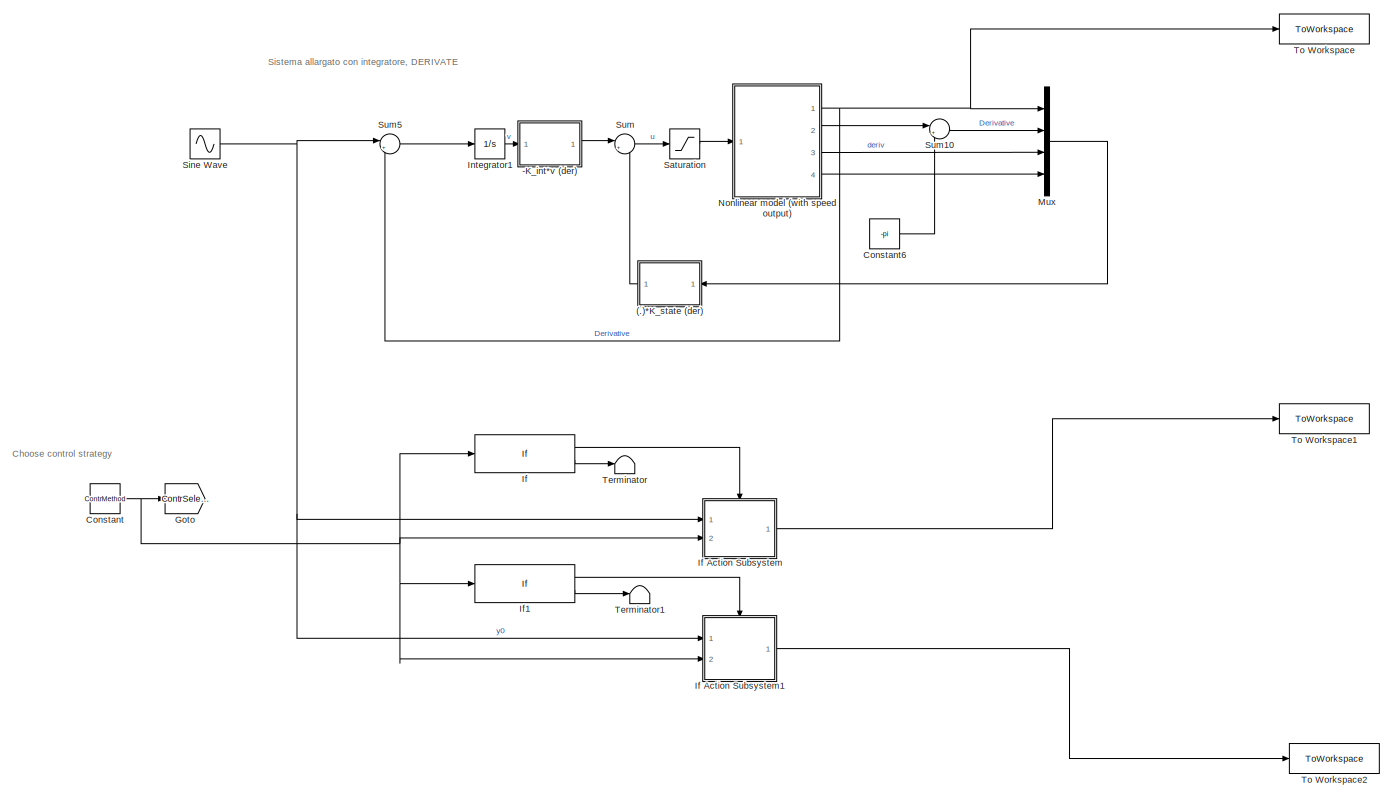
[diagram: root canvas - part 1/1, most of the canvas]
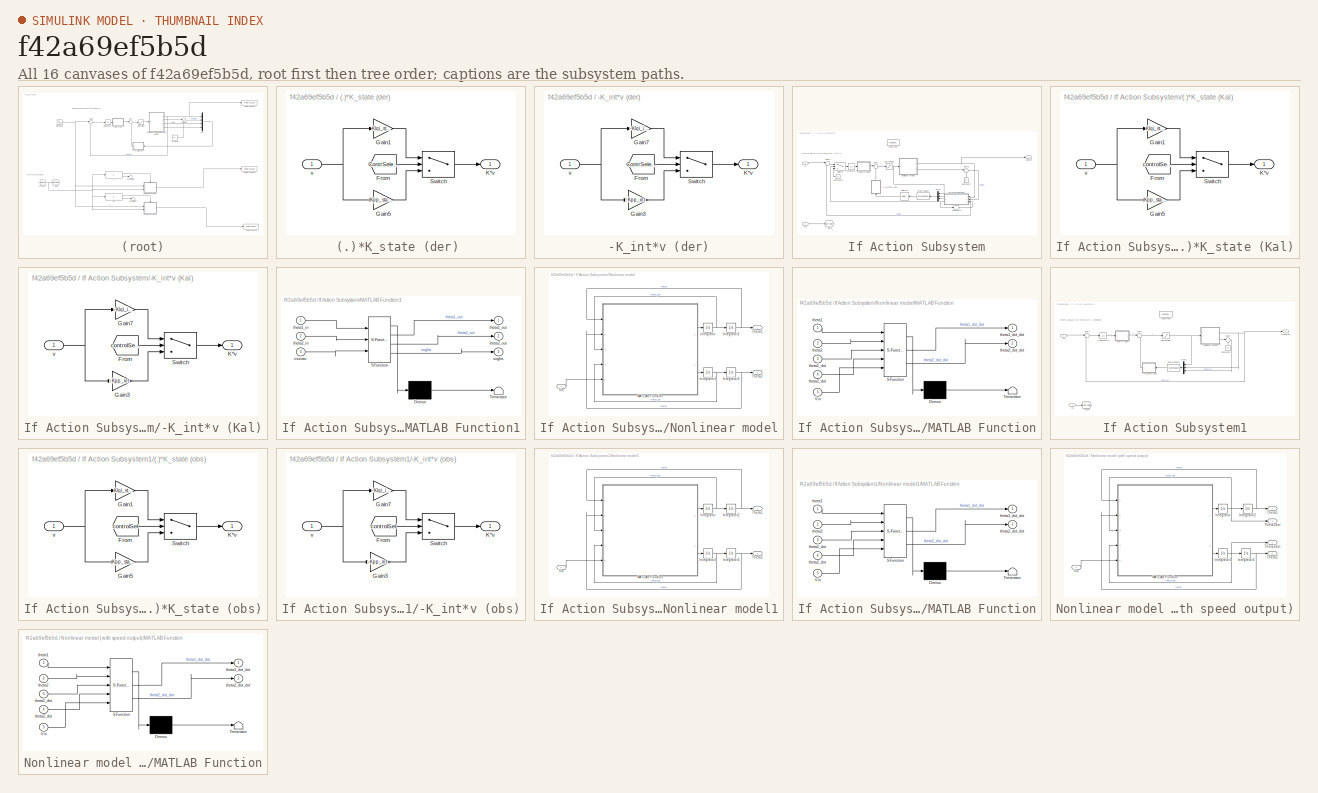
[diagram: thumbnail index - all 16 canvases of the model, root first then tree order]
MODEL slx_f42a69ef5b5d
KIND model
CONFIG AbsTol = auto
CONFIG EnableMultiTasking = off
CONFIG FixedStep = 0.002
CONFIG MaxStep = auto
CONFIG MinStep = auto
CONFIG RelTol = 1e-3
CONFIG SampleTimeConstraint = Unconstrained
CONFIG Solver = FixedStepAuto
CONFIG SolverName = FixedStepAuto
CONFIG StartTime = 0.0
CONFIG StopTime = stopTime
BLOCK [SubSystem] (.)*K_state (der) 
  Ports = [1, 1]
BLOCK [From] (.)*K_state (der) /From
  GotoTag = ContrSelector
  TagVisibility = global
BLOCK [Gain] (.)*K_state (der) /Gain1
  Gain = Klqi_state
  Multiplication = Matrix(K*u)
BLOCK [Gain] (.)*K_state (der) /Gain5
  Gain = Kpp_state
  Multiplication = Matrix(K*u)
BLOCK [Outport] (.)*K_state (der) /K*v
BLOCK [Switch] (.)*K_state (der) /Switch
  Criteria = u2 > Threshold
  InputSameDT = off
  SaturateOnIntegerOverflow = off
  Threshold = 0.5
BLOCK [Inport] (.)*K_state (der) /v
BLOCK [SubSystem] -K_int*v (der)
  Ports = [1, 1]
BLOCK [From] -K_int*v (der)/From
  GotoTag = ContrSelector
  TagVisibility = global
BLOCK [Gain] -K_int*v (der)/Gain3
  Gain = -Kpp_int
  Multiplication = Matrix(K*u)
BLOCK [Gain] -K_int*v (der)/Gain7
  Gain = -Klqi_int
  Multiplication = Matrix(K*u)
BLOCK [Outport] -K_int*v (der)/K*v
BLOCK [Switch] -K_int*v (der)/Switch
  Criteria = u2 > Threshold
  InputSameDT = off
  SaturateOnIntegerOverflow = off
  Threshold = 0.5
BLOCK [Inport] -K_int*v (der)/v
BLOCK [Constant] Constant
  Value = ContrMethod
BLOCK [Constant] Constant6
  Value = -pi
BLOCK [Goto] Goto
  GotoTag = ContrSelector
  TagVisibility = global
BLOCK [If] If
  IfExpression = u1 ~= 0
  Ports = [1, 2]
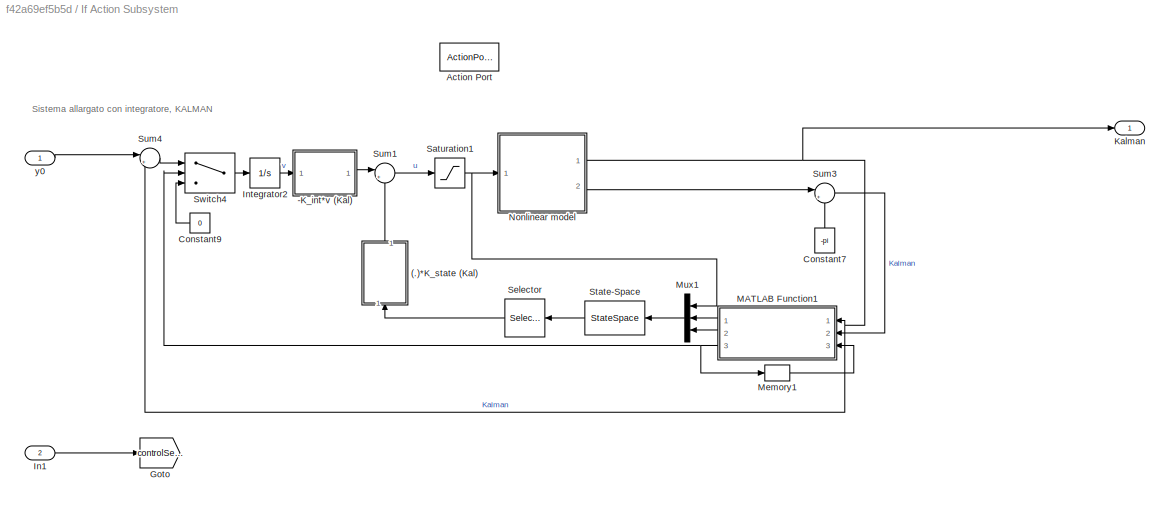
BLOCK [SubSystem] If Action Subsystem
  Ports = [2, 1, 0, 0, 0, 0, 0, 1]
  TreatAsAtomicUnit = on
BLOCK [SubSystem] If Action Subsystem/(.)*K_state (Kal)
  Ports = [1, 1]
BLOCK [From] If Action Subsystem/(.)*K_state (Kal)/From
  GotoTag = controlSelKal
  TagVisibility = global
BLOCK [Gain] If Action Subsystem/(.)*K_state (Kal)/Gain1
  Gain = Klqi_state
  Multiplication = Matrix(K*u)
BLOCK [Gain] If Action Subsystem/(.)*K_state (Kal)/Gain5
  Gain = Kpp_state
  Multiplication = Matrix(K*u)
BLOCK [Outport] If Action Subsystem/(.)*K_state (Kal)/K*v
BLOCK [Switch] If Action Subsystem/(.)*K_state (Kal)/Switch
  Criteria = u2 > Threshold
  InputSameDT = off
  SaturateOnIntegerOverflow = off
  Threshold = 0.5
BLOCK [Inport] If Action Subsystem/(.)*K_state (Kal)/v
BLOCK [SubSystem] If Action Subsystem/-K_int*v (Kal)
  Ports = [1, 1]
BLOCK [From] If Action Subsystem/-K_int*v (Kal)/From
  GotoTag = controlSelKal
  TagVisibility = global
BLOCK [Gain] If Action Subsystem/-K_int*v (Kal)/Gain3
  Gain = -Kpp_int
  Multiplication = Matrix(K*u)
BLOCK [Gain] If Action Subsystem/-K_int*v (Kal)/Gain7
  Gain = -Klqi_int
  Multiplication = Matrix(K*u)
BLOCK [Outport] If Action Subsystem/-K_int*v (Kal)/K*v
BLOCK [Switch] If Action Subsystem/-K_int*v (Kal)/Switch
  Criteria = u2 > Threshold
  InputSameDT = off
  SaturateOnIntegerOverflow = off
  Threshold = 0.5
BLOCK [Inport] If Action Subsystem/-K_int*v (Kal)/v
BLOCK [ActionPort] If Action Subsystem/Action Port
  ActionPortLabel = if(u1 ~= 0)
BLOCK [Constant] If Action Subsystem/Constant7
  Value = -pi
BLOCK [Constant] If Action Subsystem/Constant9
  Value = 0
BLOCK [Goto] If Action Subsystem/Goto
  GotoTag = controlSelKal
  TagVisibility = global
BLOCK [Inport] If Action Subsystem/In1
  Port = 2
BLOCK [Integrator] If Action Subsystem/Integrator2
  Ports = [1, 1]
BLOCK [Outport] If Action Subsystem/Kalman
BLOCK [SubSystem] If Action Subsystem/MATLAB Function1
  ErrorFcn = Stateflow.Translate.translate
  PermitHierarchicalResolution = ExplicitOnly
  Ports = [3, 3]
  SFBlockType = MATLAB Function
  TreatAsAtomicUnit = on
BLOCK [Demux] If Action Subsystem/MATLAB Function1/ Demux 
  Outputs = 1
  Ports = [1, 1]
BLOCK [S-Function] If Action Subsystem/MATLAB Function1/ SFunction 
  EnableBusSupport = on
  FunctionName = sf_sfun
  PortCounts = [3 4]
  Ports = [3, 4]
  SFcnIsStateOwnerBlock = off
  SFunctionDeploymentMode = off
  Tag = Stateflow S-Function 6
BLOCK [Terminator] If Action Subsystem/MATLAB Function1/ Terminator 
BLOCK [Inport] If Action Subsystem/MATLAB Function1/iniziato
  Port = 3
BLOCK [Outport] If Action Subsystem/MATLAB Function1/soglia
  Port = 3
BLOCK [Inport] If Action Subsystem/MATLAB Function1/theta1_in
BLOCK [Outport] If Action Subsystem/MATLAB Function1/theta1_out
BLOCK [Inport] If Action Subsystem/MATLAB Function1/theta2_in
  Port = 2
BLOCK [Outport] If Action Subsystem/MATLAB Function1/theta2_out
  Port = 2
BLOCK [Memory] If Action Subsystem/Memory1
  InitialCondition = false
BLOCK [Mux] If Action Subsystem/Mux1
  DisplayOption = bar
  Inputs = 3
  Ports = [3, 1]
BLOCK [SubSystem] If Action Subsystem/Nonlinear model
  Ports = [1, 2]
BLOCK [Integrator] If Action Subsystem/Nonlinear model/Integrator
  InitialCondition = 0.05
  Ports = [1, 1]
BLOCK [Integrator] If Action Subsystem/Nonlinear model/Integrator1
  InitialCondition = 0.05
  Ports = [1, 1]
BLOCK [Integrator] If Action Subsystem/Nonlinear model/Integrator2
  Ports = [1, 1]
BLOCK [Integrator] If Action Subsystem/Nonlinear model/Integrator3
  InitialCondition = pi
  Ports = [1, 1]
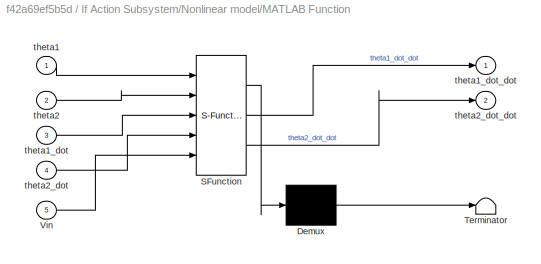
BLOCK [SubSystem] If Action Subsystem/Nonlinear model/MATLAB Function
  ErrorFcn = Stateflow.Translate.translate
  PermitHierarchicalResolution = ExplicitOnly
  Ports = [5, 2]
  SFBlockType = MATLAB Function
  TreatAsAtomicUnit = on
BLOCK [Demux] If Action Subsystem/Nonlinear model/MATLAB Function/ Demux 
  Outputs = 1
  Ports = [1, 1]
BLOCK [S-Function] If Action Subsystem/Nonlinear model/MATLAB Function/ SFunction 
  EnableBusSupport = on
  FunctionName = sf_sfun
  Parameters = Pars
  PortCounts = [5 3]
  Ports = [5, 3]
  SFcnIsStateOwnerBlock = off
  SFunctionDeploymentMode = off
  Tag = Stateflow S-Function 7
BLOCK [Terminator] If Action Subsystem/Nonlinear model/MATLAB Function/ Terminator 
BLOCK [Inport] If Action Subsystem/Nonlinear model/MATLAB Function/Vin
  Port = 5
BLOCK [Inport] If Action Subsystem/Nonlinear model/MATLAB Function/theta1
BLOCK [Inport] If Action Subsystem/Nonlinear model/MATLAB Function/theta1_dot
  Port = 3
BLOCK [Outport] If Action Subsystem/Nonlinear model/MATLAB Function/theta1_dot_dot
BLOCK [Inport] If Action Subsystem/Nonlinear model/MATLAB Function/theta2
  Port = 2
BLOCK [Inport] If Action Subsystem/Nonlinear model/MATLAB Function/theta2_dot
  Port = 4
BLOCK [Outport] If Action Subsystem/Nonlinear model/MATLAB Function/theta2_dot_dot
  Port = 2
BLOCK [Outport] If Action Subsystem/Nonlinear model/Theta1
BLOCK [Outport] If Action Subsystem/Nonlinear model/Theta2
  Port = 2
BLOCK [Inport] If Action Subsystem/Nonlinear model/Vin
BLOCK [Saturate] If Action Subsystem/Saturation1
  LowerLimit = -10
  UpperLimit = 10
BLOCK [Selector] If Action Subsystem/Selector
  IndexOptions = Index vector (dialog)
  Indices = [3,4,5,6]
  InputPortWidth = 6
  OutputSizes = 1
  Ports = [1, 1]
BLOCK [StateSpace] If Action Subsystem/State-Space
  A = kalmf.A
  B = kalmf.B
  C = kalmf.C
  D = kalmf.D
  InitialCondition = [0,0,0,0]
  Ports = [1, 1]
BLOCK [Sum] If Action Subsystem/Sum1
  Inputs = |+-
  Ports = [2, 1]
BLOCK [Sum] If Action Subsystem/Sum3
  Inputs = |++
  Ports = [2, 1]
BLOCK [Sum] If Action Subsystem/Sum4
  Inputs = |+-
  Ports = [2, 1]
BLOCK [Switch] If Action Subsystem/Switch4
  Criteria = u2 > Threshold
  InputSameDT = off
  SaturateOnIntegerOverflow = off
  Threshold = 1
BLOCK [Inport] If Action Subsystem/y0
BLOCK [SubSystem] If Action Subsystem1
  Ports = [2, 1, 0, 0, 0, 0, 0, 1]
  TreatAsAtomicUnit = on
BLOCK [SubSystem] If Action Subsystem1/(.)*K_state (obs)
  Ports = [1, 1]
BLOCK [From] If Action Subsystem1/(.)*K_state (obs)/From
  GotoTag = controlSel
  TagVisibility = global
BLOCK [Gain] If Action Subsystem1/(.)*K_state (obs)/Gain1
  Gain = Klqi_state
  Multiplication = Matrix(K*u)
BLOCK [Gain] If Action Subsystem1/(.)*K_state (obs)/Gain5
  Gain = Kpp_state
  Multiplication = Matrix(K*u)
BLOCK [Outport] If Action Subsystem1/(.)*K_state (obs)/K*v
BLOCK [Switch] If Action Subsystem1/(.)*K_state (obs)/Switch
  Criteria = u2 > Threshold
  InputSameDT = off
  SaturateOnIntegerOverflow = off
  Threshold = 0.5
BLOCK [Inport] If Action Subsystem1/(.)*K_state (obs)/v
BLOCK [SubSystem] If Action Subsystem1/-K_int*v (obs)
  Ports = [1, 1]
BLOCK [From] If Action Subsystem1/-K_int*v (obs)/From
  GotoTag = controlSel
  TagVisibility = global
BLOCK [Gain] If Action Subsystem1/-K_int*v (obs)/Gain3
  Gain = -Kpp_int
  Multiplication = Matrix(K*u)
BLOCK [Gain] If Action Subsystem1/-K_int*v (obs)/Gain7
  Gain = -Klqi_int
  Multiplication = Matrix(K*u)
BLOCK [Outport] If Action Subsystem1/-K_int*v (obs)/K*v
BLOCK [Switch] If Action Subsystem1/-K_int*v (obs)/Switch
  Criteria = u2 > Threshold
  InputSameDT = off
  SaturateOnIntegerOverflow = off
  Threshold = 0.5
BLOCK [Inport] If Action Subsystem1/-K_int*v (obs)/v
BLOCK [ActionPort] If Action Subsystem1/Action Port
  ActionPortLabel = if(u1 ~= 1)
BLOCK [Constant] If Action Subsystem1/Constant2
  Value = -pi
BLOCK [Goto] If Action Subsystem1/Goto
  GotoTag = controlSel
  TagVisibility = global
BLOCK [Inport] If Action Subsystem1/In1
  Port = 2
BLOCK [Integrator] If Action Subsystem1/Integrator3
  Ports = [1, 1]
BLOCK [Mux] If Action Subsystem1/Mux2
  DisplayOption = bar
  Inputs = 3
  Ports = [3, 1]
BLOCK [SubSystem] If Action Subsystem1/Nonlinear model1
  Ports = [1, 2]
BLOCK [Integrator] If Action Subsystem1/Nonlinear model1/Integrator
  InitialCondition = 0.05
  Ports = [1, 1]
BLOCK [Integrator] If Action Subsystem1/Nonlinear model1/Integrator1
  InitialCondition = 0.05
  Ports = [1, 1]
BLOCK [Integrator] If Action Subsystem1/Nonlinear model1/Integrator2
  Ports = [1, 1]
BLOCK [Integrator] If Action Subsystem1/Nonlinear model1/Integrator3
  InitialCondition = pi
  Ports = [1, 1]
BLOCK [SubSystem] If Action Subsystem1/Nonlinear model1/MATLAB Function
  ErrorFcn = Stateflow.Translate.translate
  PermitHierarchicalResolution = ExplicitOnly
  Ports = [5, 2]
  SFBlockType = MATLAB Function
  TreatAsAtomicUnit = on
BLOCK [Demux] If Action Subsystem1/Nonlinear model1/MATLAB Function/ Demux 
  Outputs = 1
  Ports = [1, 1]
BLOCK [S-Function] If Action Subsystem1/Nonlinear model1/MATLAB Function/ SFunction 
  EnableBusSupport = on
  FunctionName = sf_sfun
  Parameters = Pars
  PortCounts = [5 3]
  Ports = [5, 3]
  SFcnIsStateOwnerBlock = off
  SFunctionDeploymentMode = off
  Tag = Stateflow S-Function 5
BLOCK [Terminator] If Action Subsystem1/Nonlinear model1/MATLAB Function/ Terminator 
BLOCK [Inport] If Action Subsystem1/Nonlinear model1/MATLAB Function/Vin
  Port = 5
BLOCK [Inport] If Action Subsystem1/Nonlinear model1/MATLAB Function/theta1
BLOCK [Inport] If Action Subsystem1/Nonlinear model1/MATLAB Function/theta1_dot
  Port = 3
BLOCK [Outport] If Action Subsystem1/Nonlinear model1/MATLAB Function/theta1_dot_dot
BLOCK [Inport] If Action Subsystem1/Nonlinear model1/MATLAB Function/theta2
  Port = 2
BLOCK [Inport] If Action Subsystem1/Nonlinear model1/MATLAB Function/theta2_dot
  Port = 4
BLOCK [Outport] If Action Subsystem1/Nonlinear model1/MATLAB Function/theta2_dot_dot
  Port = 2
BLOCK [Outport] If Action Subsystem1/Nonlinear model1/Theta1
BLOCK [Outport] If Action Subsystem1/Nonlinear model1/Theta2
  Port = 2
BLOCK [Inport] If Action Subsystem1/Nonlinear model1/Vin
BLOCK [Outport] If Action Subsystem1/Observer
BLOCK [Saturate] If Action Subsystem1/Saturation2
  LowerLimit = -10
  UpperLimit = 10
BLOCK [StateSpace] If Action Subsystem1/State-Space1
  A = Ao
  B = Bo
  C = Co
  D = zeros(4,3)
  InitialCondition = [0,0,0,0]
  Ports = [1, 1]
BLOCK [Sum] If Action Subsystem1/Sum2
  Inputs = |++
  Ports = [2, 1]
BLOCK [Sum] If Action Subsystem1/Sum6
  Inputs = |+-
  Ports = [2, 1]
BLOCK [Sum] If Action Subsystem1/Sum7
  Inputs = |+-
  Ports = [2, 1]
BLOCK [Inport] If Action Subsystem1/y0
BLOCK [If] If1
  IfExpression = u1 ~= 1
  Ports = [1, 2]
BLOCK [Integrator] Integrator1
  Ports = [1, 1]
BLOCK [Mux] Mux
  DisplayOption = bar
  Ports = [4, 1]
BLOCK [SubSystem] Nonlinear model (with speed output)
  Ports = [1, 4]
BLOCK [Integrator] Nonlinear model (with speed output)/Integrator
  InitialCondition = 0.05
  Ports = [1, 1]
BLOCK [Integrator] Nonlinear model (with speed output)/Integrator1
  InitialCondition = 0.05
  Ports = [1, 1]
BLOCK [Integrator] Nonlinear model (with speed output)/Integrator2
  Ports = [1, 1]
BLOCK [Integrator] Nonlinear model (with speed output)/Integrator3
  InitialCondition = pi
  Ports = [1, 1]
BLOCK [SubSystem] Nonlinear model (with speed output)/MATLAB Function
  ErrorFcn = Stateflow.Translate.translate
  PermitHierarchicalResolution = ExplicitOnly
  Ports = [5, 2]
  SFBlockType = MATLAB Function
  TreatAsAtomicUnit = on
BLOCK [Demux] Nonlinear model (with speed output)/MATLAB Function/ Demux 
  Outputs = 1
  Ports = [1, 1]
BLOCK [S-Function] Nonlinear model (with speed output)/MATLAB Function/ SFunction 
  EnableBusSupport = on
  FunctionName = sf_sfun
  Parameters = Pars
  PortCounts = [5 3]
  Ports = [5, 3]
  SFcnIsStateOwnerBlock = off
  SFunctionDeploymentMode = off
  Tag = Stateflow S-Function 4
BLOCK [Terminator] Nonlinear model (with speed output)/MATLAB Function/ Terminator 
BLOCK [Inport] Nonlinear model (with speed output)/MATLAB Function/Vin
  Port = 5
BLOCK [Inport] Nonlinear model (with speed output)/MATLAB Function/theta1
BLOCK [Inport] Nonlinear model (with speed output)/MATLAB Function/theta1_dot
  Port = 3
BLOCK [Outport] Nonlinear model (with speed output)/MATLAB Function/theta1_dot_dot
BLOCK [Inport] Nonlinear model (with speed output)/MATLAB Function/theta2
  Port = 2
BLOCK [Inport] Nonlinear model (with speed output)/MATLAB Function/theta2_dot
  Port = 4
BLOCK [Outport] Nonlinear model (with speed output)/MATLAB Function/theta2_dot_dot
  Port = 2
BLOCK [Outport] Nonlinear model (with speed output)/Theta1
BLOCK [Outport] Nonlinear model (with speed output)/Theta1dot
  Port = 3
BLOCK [Outport] Nonlinear model (with speed output)/Theta2
  Port = 2
BLOCK [Outport] Nonlinear model (with speed output)/Theta2dot
  Port = 4
BLOCK [Inport] Nonlinear model (with speed output)/Vin
BLOCK [Saturate] Saturation
  LowerLimit = -10
  UpperLimit = 10
BLOCK [Sin] Sine Wave
  Amplitude = ampl
  Frequency = frequency
  Ports = [0, 1]
  SampleTime = 0
BLOCK [Sum] Sum
  Inputs = |+-
  Ports = [2, 1]
BLOCK [Sum] Sum10
  Inputs = |++
  Ports = [2, 1]
BLOCK [Sum] Sum5
  Inputs = |+-
  Ports = [2, 1]
BLOCK [Terminator] Terminator
BLOCK [Terminator] Terminator1
BLOCK [ToWorkspace] To Workspace
  FixptAsFi = on
  MaxDataPoints = inf
  Ports = [1]
  SampleTime = -1
  VariableName = derivative
BLOCK [ToWorkspace] To Workspace1
  FixptAsFi = on
  MaxDataPoints = inf
  Ports = [1]
  SampleTime = -1
  VariableName = kalman
BLOCK [ToWorkspace] To Workspace2
  FixptAsFi = on
  MaxDataPoints = inf
  Ports = [1]
  SampleTime = -1
  VariableName = observer
ANNOTATION (root): Choose control strategy
ANNOTATION (root): Sistema allargato con integratore, DERIVATE
ANNOTATION If Action Subsystem: Sistema allargato con integratore, KALMAN
ANNOTATION If Action Subsystem1: Sistema allargato con integratore, OBSERVER
LINE (.)*K_state (der) /From:1 -> (.)*K_state (der) /Switch:2
LINE (.)*K_state (der) /Gain1:1 -> (.)*K_state (der) /Switch:1
LINE (.)*K_state (der) /Gain5:1 -> (.)*K_state (der) /Switch:3
LINE (.)*K_state (der) /Switch:1 -> (.)*K_state (der) /K*v:1
NET (.)*K_state (der) /v:1 -> (.)*K_state (der) /Gain1:1, (.)*K_state (der) /Gain5:1
LINE (.)*K_state (der) :1 -> Sum:2
LINE -K_int*v (der)/From:1 -> -K_int*v (der)/Switch:2
LINE -K_int*v (der)/Gain3:1 -> -K_int*v (der)/Switch:3
LINE -K_int*v (der)/Gain7:1 -> -K_int*v (der)/Switch:1
LINE -K_int*v (der)/Switch:1 -> -K_int*v (der)/K*v:1
NET -K_int*v (der)/v:1 -> -K_int*v (der)/Gain3:1, -K_int*v (der)/Gain7:1
LINE -K_int*v (der):1 -> Sum:1
LINE Constant6:1 -> Sum10:2
NET Constant:1 -> Goto:1, If Action Subsystem1:2, If Action Subsystem:2, If1:1, If:1
LINE If Action Subsystem/(.)*K_state (Kal)/From:1 -> If Action Subsystem/(.)*K_state (Kal)/Switch:2
LINE If Action Subsystem/(.)*K_state (Kal)/Gain1:1 -> If Action Subsystem/(.)*K_state (Kal)/Switch:1
LINE If Action Subsystem/(.)*K_state (Kal)/Gain5:1 -> If Action Subsystem/(.)*K_state (Kal)/Switch:3
LINE If Action Subsystem/(.)*K_state (Kal)/Switch:1 -> If Action Subsystem/(.)*K_state (Kal)/K*v:1
NET If Action Subsystem/(.)*K_state (Kal)/v:1 -> If Action Subsystem/(.)*K_state (Kal)/Gain1:1, If Action Subsystem/(.)*K_state (Kal)/Gain5:1
LINE If Action Subsystem/(.)*K_state (Kal):1 -> If Action Subsystem/Sum1:2
LINE If Action Subsystem/-K_int*v (Kal)/From:1 -> If Action Subsystem/-K_int*v (Kal)/Switch:2
LINE If Action Subsystem/-K_int*v (Kal)/Gain3:1 -> If Action Subsystem/-K_int*v (Kal)/Switch:3
LINE If Action Subsystem/-K_int*v (Kal)/Gain7:1 -> If Action Subsystem/-K_int*v (Kal)/Switch:1
LINE If Action Subsystem/-K_int*v (Kal)/Switch:1 -> If Action Subsystem/-K_int*v (Kal)/K*v:1
NET If Action Subsystem/-K_int*v (Kal)/v:1 -> If Action Subsystem/-K_int*v (Kal)/Gain3:1, If Action Subsystem/-K_int*v (Kal)/Gain7:1
LINE If Action Subsystem/-K_int*v (Kal):1 -> If Action Subsystem/Sum1:1
LINE If Action Subsystem/Constant7:1 -> If Action Subsystem/Sum3:2
LINE If Action Subsystem/Constant9:1 -> If Action Subsystem/Switch4:3
LINE If Action Subsystem/In1:1 -> If Action Subsystem/Goto:1
LINE If Action Subsystem/Integrator2:1 -> If Action Subsystem/-K_int*v (Kal):1
LINE If Action Subsystem/MATLAB Function1:1 -> If Action Subsystem/Mux1:2
LINE If Action Subsystem/MATLAB Function1:2 -> If Action Subsystem/Mux1:3
NET If Action Subsystem/MATLAB Function1:3 -> If Action Subsystem/Memory1:1, If Action Subsystem/Switch4:2
LINE If Action Subsystem/Memory1:1 -> If Action Subsystem/MATLAB Function1:3
LINE If Action Subsystem/Mux1:1 -> If Action Subsystem/State-Space:1
NET If Action Subsystem/Nonlinear model/Integrator1:1 -> If Action Subsystem/Nonlinear model/Integrator3:1, If Action Subsystem/Nonlinear model/MATLAB Function:4
NET If Action Subsystem/Nonlinear model/Integrator2:1 -> If Action Subsystem/Nonlinear model/MATLAB Function:1, If Action Subsystem/Nonlinear model/Theta1:1
NET If Action Subsystem/Nonlinear model/Integrator3:1 -> If Action Subsystem/Nonlinear model/MATLAB Function:2, If Action Subsystem/Nonlinear model/Theta2:1
NET If Action Subsystem/Nonlinear model/Integrator:1 -> If Action Subsystem/Nonlinear model/Integrator2:1, If Action Subsystem/Nonlinear model/MATLAB Function:3
LINE If Action Subsystem/Nonlinear model/MATLAB Function:1 -> If Action Subsystem/Nonlinear model/Integrator:1
LINE If Action Subsystem/Nonlinear model/MATLAB Function:2 -> If Action Subsystem/Nonlinear model/Integrator1:1
LINE If Action Subsystem/Nonlinear model/Vin:1 -> If Action Subsystem/Nonlinear model/MATLAB Function:5
NET If Action Subsystem/Nonlinear model:1 -> If Action Subsystem/Kalman:1, If Action Subsystem/MATLAB Function1:1, If Action Subsystem/Sum4:2
LINE If Action Subsystem/Nonlinear model:2 -> If Action Subsystem/Sum3:1
NET If Action Subsystem/Saturation1:1 -> If Action Subsystem/Mux1:1, If Action Subsystem/Nonlinear model:1
LINE If Action Subsystem/Selector:1 -> If Action Subsystem/(.)*K_state (Kal):1
LINE If Action Subsystem/State-Space:1 -> If Action Subsystem/Selector:1
LINE If Action Subsystem/Sum1:1 -> If Action Subsystem/Saturation1:1
LINE If Action Subsystem/Sum3:1 -> If Action Subsystem/MATLAB Function1:2
LINE If Action Subsystem/Sum4:1 -> If Action Subsystem/Switch4:1
LINE If Action Subsystem/Switch4:1 -> If Action Subsystem/Integrator2:1
LINE If Action Subsystem/y0:1 -> If Action Subsystem/Sum4:1
LINE If Action Subsystem1/(.)*K_state (obs)/From:1 -> If Action Subsystem1/(.)*K_state (obs)/Switch:2
LINE If Action Subsystem1/(.)*K_state (obs)/Gain1:1 -> If Action Subsystem1/(.)*K_state (obs)/Switch:1
LINE If Action Subsystem1/(.)*K_state (obs)/Gain5:1 -> If Action Subsystem1/(.)*K_state (obs)/Switch:3
LINE If Action Subsystem1/(.)*K_state (obs)/Switch:1 -> If Action Subsystem1/(.)*K_state (obs)/K*v:1
NET If Action Subsystem1/(.)*K_state (obs)/v:1 -> If Action Subsystem1/(.)*K_state (obs)/Gain1:1, If Action Subsystem1/(.)*K_state (obs)/Gain5:1
LINE If Action Subsystem1/(.)*K_state (obs):1 -> If Action Subsystem1/Sum6:2
LINE If Action Subsystem1/-K_int*v (obs)/From:1 -> If Action Subsystem1/-K_int*v (obs)/Switch:2
LINE If Action Subsystem1/-K_int*v (obs)/Gain3:1 -> If Action Subsystem1/-K_int*v (obs)/Switch:3
LINE If Action Subsystem1/-K_int*v (obs)/Gain7:1 -> If Action Subsystem1/-K_int*v (obs)/Switch:1
LINE If Action Subsystem1/-K_int*v (obs)/Switch:1 -> If Action Subsystem1/-K_int*v (obs)/K*v:1
NET If Action Subsystem1/-K_int*v (obs)/v:1 -> If Action Subsystem1/-K_int*v (obs)/Gain3:1, If Action Subsystem1/-K_int*v (obs)/Gain7:1
LINE If Action Subsystem1/-K_int*v (obs):1 -> If Action Subsystem1/Sum6:1
LINE If Action Subsystem1/Constant2:1 -> If Action Subsystem1/Sum2:2
LINE If Action Subsystem1/In1:1 -> If Action Subsystem1/Goto:1
LINE If Action Subsystem1/Integrator3:1 -> If Action Subsystem1/-K_int*v (obs):1
LINE If Action Subsystem1/Mux2:1 -> If Action Subsystem1/State-Space1:1
NET If Action Subsystem1/Nonlinear model1/Integrator1:1 -> If Action Subsystem1/Nonlinear model1/Integrator3:1, If Action Subsystem1/Nonlinear model1/MATLAB Function:4
NET If Action Subsystem1/Nonlinear model1/Integrator2:1 -> If Action Subsystem1/Nonlinear model1/MATLAB Function:1, If Action Subsystem1/Nonlinear model1/Theta1:1
NET If Action Subsystem1/Nonlinear model1/Integrator3:1 -> If Action Subsystem1/Nonlinear model1/MATLAB Function:2, If Action Subsystem1/Nonlinear model1/Theta2:1
NET If Action Subsystem1/Nonlinear model1/Integrator:1 -> If Action Subsystem1/Nonlinear model1/Integrator2:1, If Action Subsystem1/Nonlinear model1/MATLAB Function:3
LINE If Action Subsystem1/Nonlinear model1/MATLAB Function:1 -> If Action Subsystem1/Nonlinear model1/Integrator:1
LINE If Action Subsystem1/Nonlinear model1/MATLAB Function:2 -> If Action Subsystem1/Nonlinear model1/Integrator1:1
LINE If Action Subsystem1/Nonlinear model1/Vin:1 -> If Action Subsystem1/Nonlinear model1/MATLAB Function:5
NET If Action Subsystem1/Nonlinear model1:1 -> If Action Subsystem1/Mux2:2, If Action Subsystem1/Observer:1, If Action Subsystem1/Sum7:2
LINE If Action Subsystem1/Nonlinear model1:2 -> If Action Subsystem1/Sum2:1
NET If Action Subsystem1/Saturation2:1 -> If Action Subsystem1/Mux2:1, If Action Subsystem1/Nonlinear model1:1
LINE If Action Subsystem1/State-Space1:1 -> If Action Subsystem1/(.)*K_state (obs):1
LINE If Action Subsystem1/Sum2:1 -> If Action Subsystem1/Mux2:3
LINE If Action Subsystem1/Sum6:1 -> If Action Subsystem1/Saturation2:1
LINE If Action Subsystem1/Sum7:1 -> If Action Subsystem1/Integrator3:1
LINE If Action Subsystem1/y0:1 -> If Action Subsystem1/Sum7:1
LINE If Action Subsystem1:1 -> To Workspace2:1
LINE If Action Subsystem:1 -> To Workspace1:1
LINE If1:1 -> If Action Subsystem1:ifaction
LINE If1:2 -> Terminator1:1
LINE If:1 -> If Action Subsystem:ifaction
LINE If:2 -> Terminator:1
LINE Integrator1:1 -> -K_int*v (der):1
LINE Mux:1 -> (.)*K_state (der) :1
NET Nonlinear model (with speed output)/Integrator1:1 -> Nonlinear model (with speed output)/Integrator3:1, Nonlinear model (with speed output)/MATLAB Function:4, Nonlinear model (with speed output)/Theta2dot:1
NET Nonlinear model (with speed output)/Integrator2:1 -> Nonlinear model (with speed output)/MATLAB Function:1, Nonlinear model (with speed output)/Theta1:1
NET Nonlinear model (with speed output)/Integrator3:1 -> Nonlinear model (with speed output)/MATLAB Function:2, Nonlinear model (with speed output)/Theta2:1
NET Nonlinear model (with speed output)/Integrator:1 -> Nonlinear model (with speed output)/Integrator2:1, Nonlinear model (with speed output)/MATLAB Function:3, Nonlinear model (with speed output)/Theta1dot:1
LINE Nonlinear model (with speed output)/MATLAB Function:1 -> Nonlinear model (with speed output)/Integrator:1
LINE Nonlinear model (with speed output)/MATLAB Function:2 -> Nonlinear model (with speed output)/Integrator1:1
LINE Nonlinear model (with speed output)/Vin:1 -> Nonlinear model (with speed output)/MATLAB Function:5
NET Nonlinear model (with speed output):1 -> Mux:1, Sum5:2, To Workspace:1
LINE Nonlinear model (with speed output):2 -> Sum10:1
LINE Nonlinear model (with speed output):3 -> Mux:3
LINE Nonlinear model (with speed output):4 -> Mux:4
LINE Saturation:1 -> Nonlinear model (with speed output):1
NET Sine Wave:1 -> If Action Subsystem1:1, If Action Subsystem:1, Sum5:1
LINE Sum10:1 -> Mux:2
LINE Sum5:1 -> Integrator1:1
LINE Sum:1 -> Saturation:1
note: NET lines group one-source signal fan-out (src -> all destinations, sorted); 1:1 wires keep LINE
CHART Nonlinear model
(with speed output)/MATLAB Function states=1 transitions=1
  STATE_LABEL 'eML_blk_kernel()'
  STATE_LABEL 'SCRIPT:\nfunction [theta1_dot_dot,theta2_dot_dot] = fcn(theta1, theta2, theta1_dot, theta2_dot,Vin, Pars)\n\n   k1 = Pars.Jeq + Pars.m2*(Pars.l1^2 + Pars.x2^2*sin(theta2)^2);\n   k2 = Pars.m2*Pars.l1*Pars.x2*cos(theta2);\n   k3 = 2*Pars.m2*Pars.x2^2*sin(theta2)*cos(theta2)*theta1_dot*theta2_dot - Pars.m2*Pars.l1*Pars.x2*sin(theta2)*theta2_dot^2 +Pars.Ks*theta1 - Pars.Km/Pars.Rm*Vin + (Pars.Km^2)/Pars.R...<+346ch>'  <repeated x3 — deduplicated; at blocks: Nonlinear model, If Action>
CHART If Action
Subsystem1/Nonlinear model1/MATLAB Function states=1 transitions=1
  STATE_LABEL 'eML_blk_kernel()'
CHART If Action
Subsystem/MATLAB Function1 states=1 transitions=1
  STATE_LABEL 'eML_blk_kernel()'
  STATE_LABEL 'SCRIPT:\nfunction [theta1_out, theta2_out, soglia] = fcn(theta1_in, theta2_in, iniziato)\nif theta2_in >= 0.01\n    theta1_out = theta1_in;\n    theta2_out = theta2_in;\n    soglia = 2; \nelseif iniziato >1\n    theta1_out = theta1_in;\n    theta2_out = theta2_in;\n    soglia = 2;\nelse\n    soglia = 0;\n    theta1_out = 0;\n    theta2_out = 0;\nend\n% soglia = 2;s\n% theta1_out = theta1_in;\n% theta2_out = theta2...<+11ch>'
CHART If Action
Subsystem/Nonlinear model/MATLAB Function states=1 transitions=1
  STATE_LABEL 'eML_blk_kernel()'
